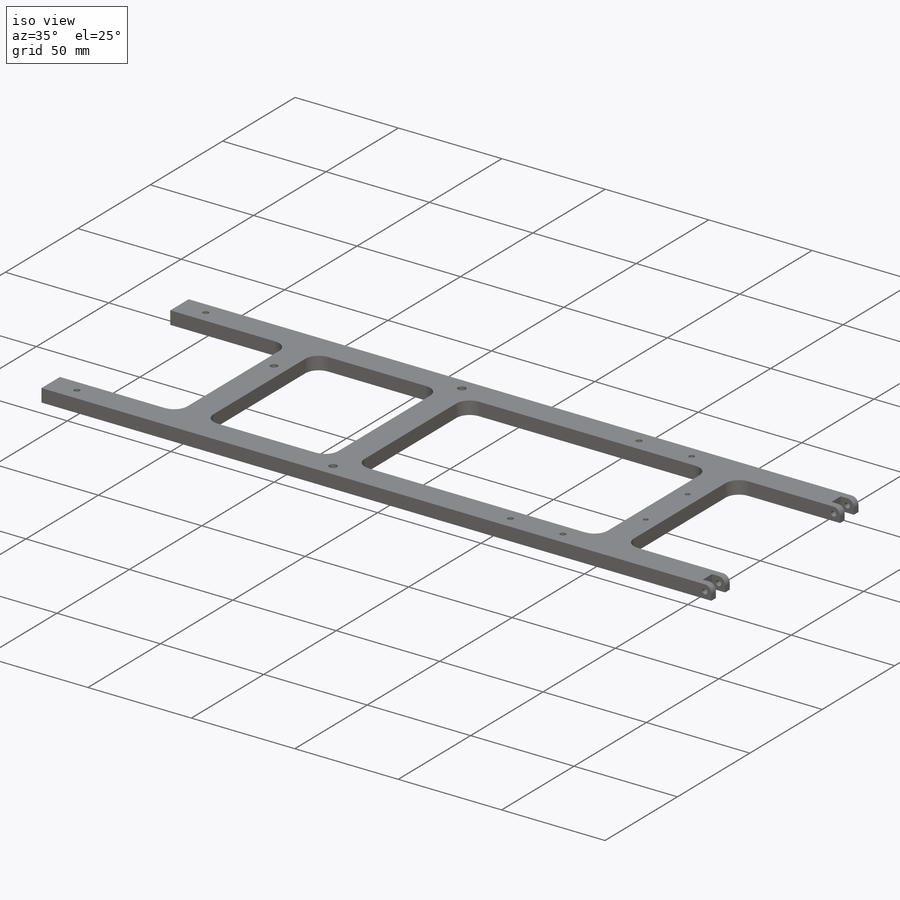
[diagram: iso view]
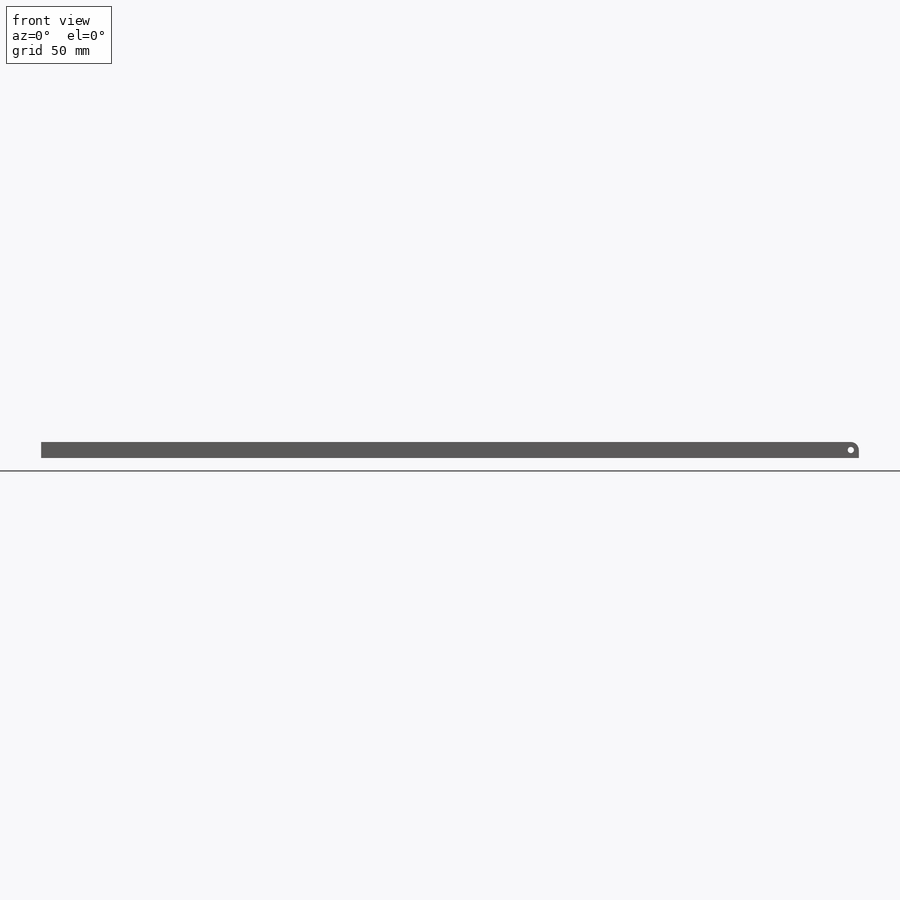
[diagram: front view]
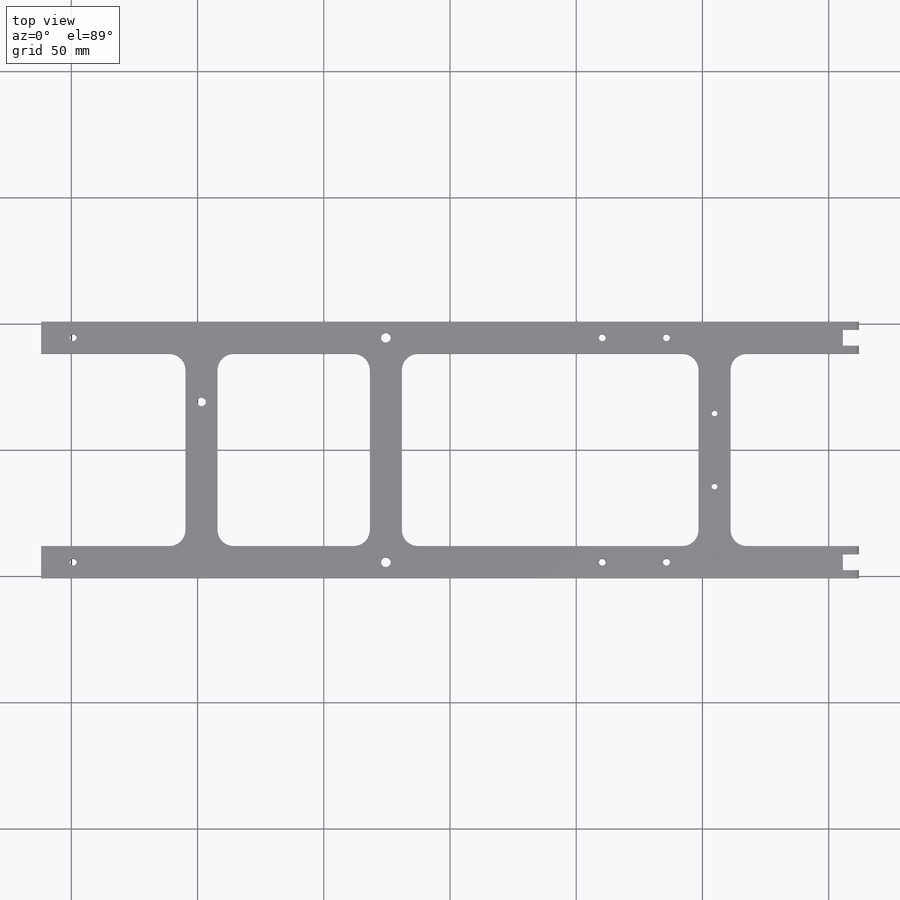
[diagram: top view]
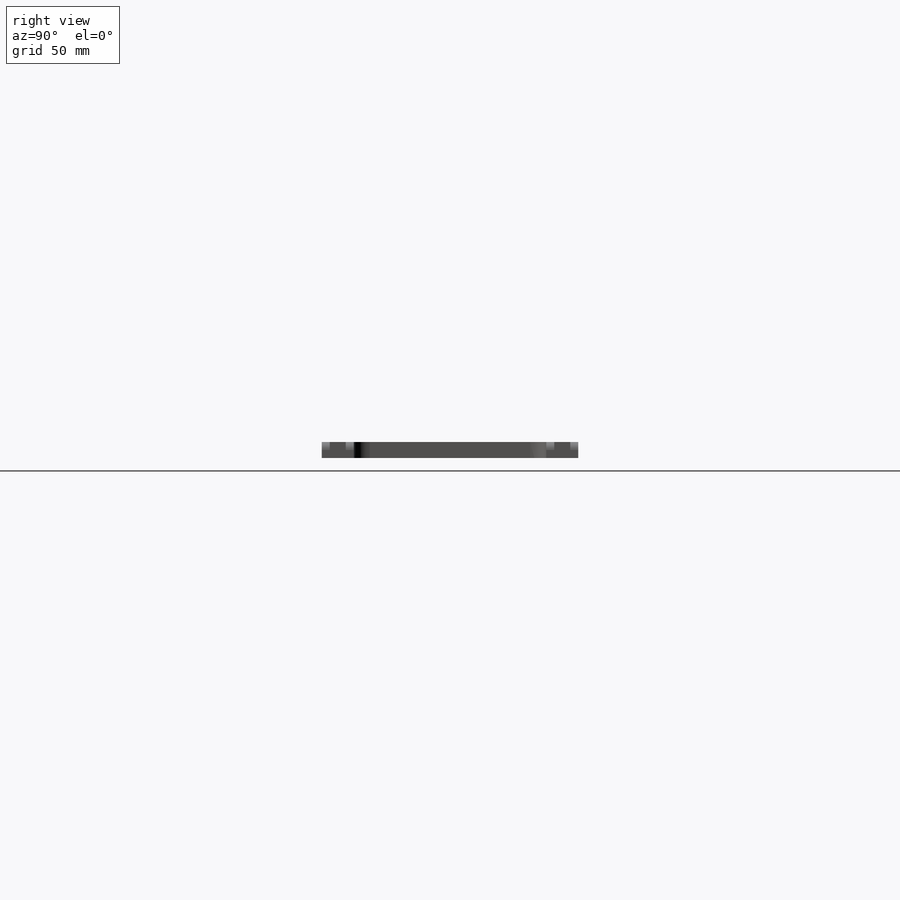
[diagram: right view]
SOLIDWORKS PART (.sldprt)
format: sldprt  version: not decoded by parser v0  size: 451,584 bytes
history: native  units: mm
features: sketch x16, hole x6, cut_extrude x3, fillet x3, material x1, extrude x1 (+11 scaffold rows collapsed)
feature tree (41):
  scaffold x11  (default folders/planes/origin — collapsed)
  material  "6061 Alloy"
  sketch  "Sketch1"  dims[D1=323.85mm D2=101.6mm]
  extrude  "Extrude1"  Depth=6.35mm
  sketch  "Sketch2"  dims[D1=76.2mm D2=57.15mm D3=12.7mm]
  cut_extrude  "Cut-Extrude1"  Depth=6.35mm
  sketch  "Sketch3"  dims[D1=60.325mm D2=12.7mm D3=12.7mm D4=12.7mm D5=50.8mm]
  cut_extrude  "Cut-Extrude2"  Depth=6.35mm
  sketch  "Sketch4"  dims[D1=6.35mm D2=3.175mm D3=6.35mm D4=3.175mm D5=6.35mm]
  cut_extrude  "Cut-Extrude3"  Depth=6.35mm
  hole  "#2 Clearance Hole1"  Diameter=2.4384mm Depth=101.6mm
  sketch  "3DSketch1"  dims[D1=3.175mm D2=3.175mm]
  sketch  "Sketch6"  dims[hole-wizard template sketch: 60 standard entries collapsed; hole parameters kept: c18.Thru Hole Depth=101.6mm]
  fillet  "Fillet1"  Radius=3.175mm
  hole  "Tap Drill for #8 Tap1"  Diameter=3.4544mm Depth=12.7mm
  sketch  "3DSketch2"  dims[D1=6.35mm D2=19.05mm]
  sketch  "Sketch8"  dims[hole-wizard template sketch: 50 standard entries collapsed; hole parameters above]
  hole  "#6 Clearance Hole1"  Diameter=3.7973mm Depth=12.7mm
  sketch  "3DSketch3"  dims[D1=6.35mm D2=6.35mm D3=6.35mm D4=6.35mm]
  sketch  "Sketch9"  dims[hole-wizard template sketch: 50 standard entries collapsed; hole parameters above]
  hole  "Tap Drill for #6 Tap1"  Diameter=2.7051mm Depth=12.7mm
  sketch  "3DSketch4"  dims[D1=12.7mm D2=12.7mm D3=6.35mm D4=6.35mm]
  sketch  "Sketch10"  dims[hole-wizard template sketch: 47 standard entries collapsed; hole parameters kept: c15.Hole Depth=12.7mm c15.D3=~14.816244mm c15.Drill Angle=118.0deg]
  fillet  "Fillet2"  Radius=6.35mm
  fillet  "Fillet3"  Radius=6.35mm
  hole  "Tap Drill for #6 Tap2"  Diameter=2.7051mm Depth=101.6mm
  sketch  "3DSketch5"  dims[D1=6.35mm D2=6.35mm D3=38.1mm D4=25.4mm]
  sketch  "Sketch11"  dims[hole-wizard template sketch: 47 standard entries collapsed; hole parameters kept: c15.Hole Depth=101.6mm c15.D3=~14.816244mm c15.Drill Angle=118.0deg]
  hole  "Tap Drill for #4 Tap1"  Diameter=2.2606mm Depth=6.35mm
  sketch  "3DSketch6"  dims[D1=6.35mm D2=28.956mm D3=6.35mm D4=14.478mm]
  sketch  "Sketch12"  dims[hole-wizard template sketch: 59 standard entries collapsed; hole parameters kept: c18.Thru Hole Dia.=2.2606mm c18.Thru Hole Depth=6.35mm]
decode coverage: 29 of 29 modeling features carry decoded parameters
note: ~ marks probable driven/reference dimensions
summary: Diameter pulled from absorbed wizard sketch
note: suppression state not decoded; provenance and decode notes live in map.json
